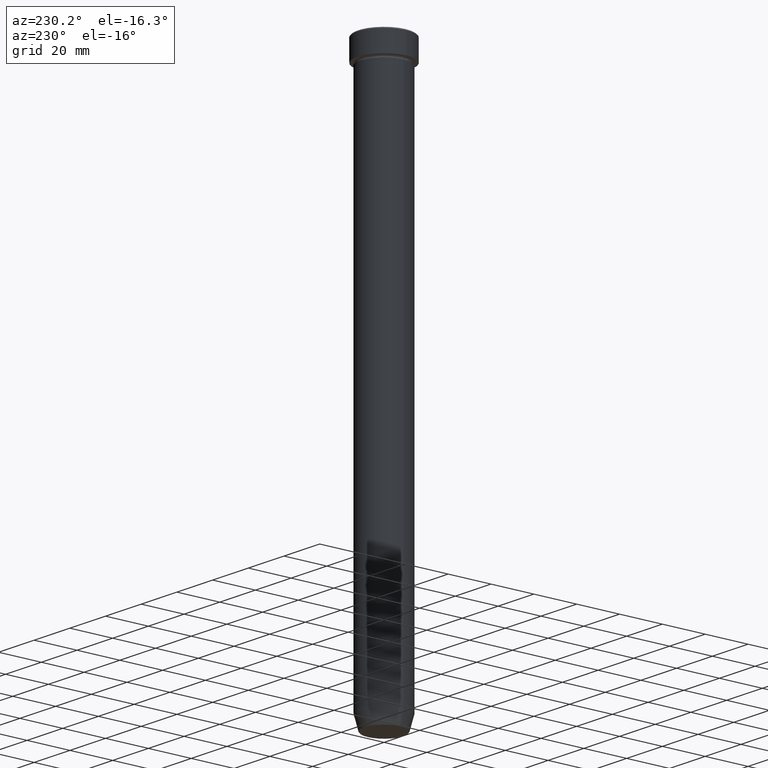
[diagram: clean part render]
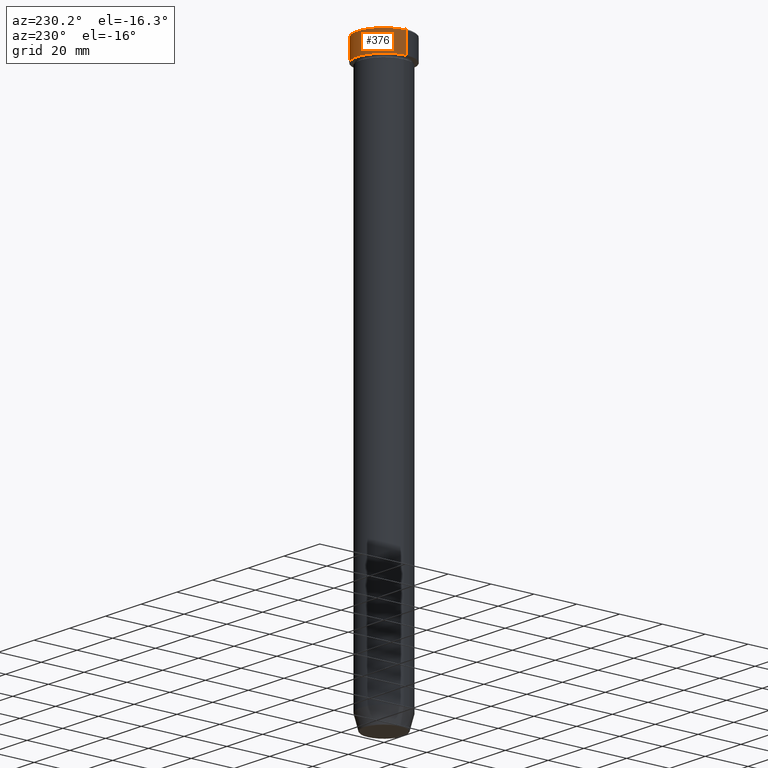
[diagram: same view with one face highlighted and labeled with its STEP entity id]
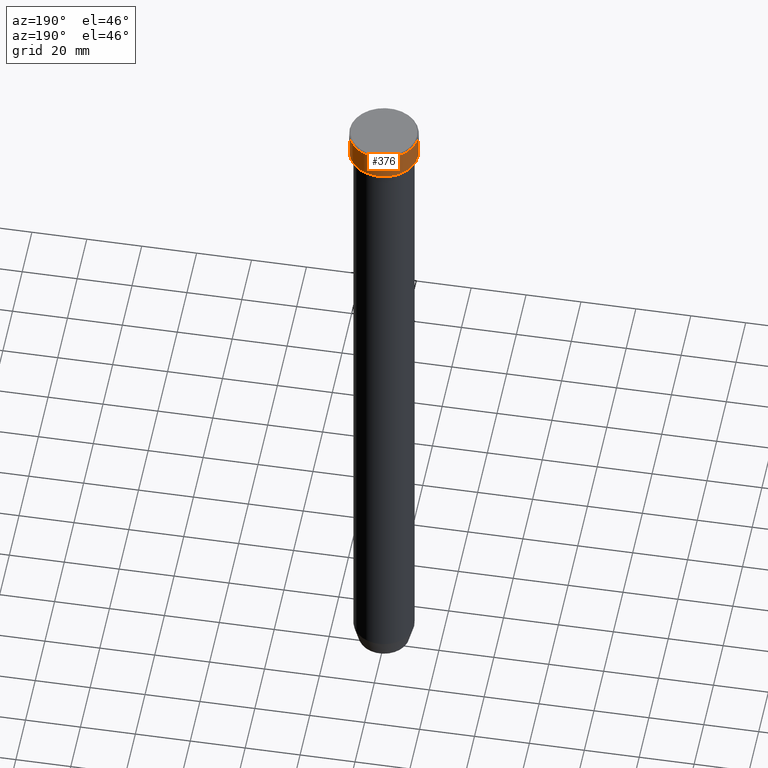
[diagram: same view with one face highlighted and labeled with its STEP entity id]
A machine part, auxiliary view. The second image highlights one B-rep face of the part: STEP entity #376.
A second angle (auxiliary view) of the same face is appended — the face is thin or edge-on in the first view.
In plain terms, the highlighted cylindrical surface (edge-blend (fillet) strip) has radius 12.5 mm, axis along (-0, -0, 1).
Its self-contained STEP definition (entity closure, byte-faithful):
#27 = CARTESIAN_POINT ( 'NONE',  ( -12.50000000000000000, 1.530808498934191521E-15, 0.000000000000000000 ) ) ;
#43 = DIRECTION ( 'NONE',  ( 0.000000000000000000, 0.000000000000000000, -1.000000000000000000 ) ) ;
#45 = CARTESIAN_POINT ( 'NONE',  ( 0.000000000000000000, 0.000000000000000000, -0.4999999999999988343 ) ) ;
#52 = EDGE_CURVE ( 'NONE', #199, #536, #200, .T. ) ;
#71 = CIRCLE ( 'NONE', #273, 12.50000000000000000 ) ;
#76 = ORIENTED_EDGE ( 'NONE', *, *, #313, .T. ) ;
#93 = ORIENTED_EDGE ( 'NONE', *, *, #52, .T. ) ;
#99 = DIRECTION ( 'NONE',  ( 1.000000000000000000, 0.000000000000000000, 0.000000000000000000 ) ) ;
#145 = CARTESIAN_POINT ( 'NONE',  ( -12.50000000000000000, 1.530808498934191521E-15, -0.4999999999999988343 ) ) ;
#152 = DIRECTION ( 'NONE',  ( -0.000000000000000000, -0.000000000000000000, 1.000000000000000000 ) ) ;
#167 = ORIENTED_EDGE ( 'NONE', *, *, #440, .F. ) ;
#172 = AXIS2_PLACEMENT_3D ( 'NONE', #391, #152, #519 ) ;
#192 = FACE_OUTER_BOUND ( 'NONE', #363, .T. ) ;
#196 = ORIENTED_EDGE ( 'NONE', *, *, #292, .T. ) ;
#199 = VERTEX_POINT ( 'NONE', #401 ) ;
#200 = LINE ( 'NONE', #27, #281 ) ;
#230 = CARTESIAN_POINT ( 'NONE',  ( 12.50000000000000000, 0.000000000000000000, -10.00000000000000000 ) ) ;
#239 = DIRECTION ( 'NONE',  ( 1.000000000000000000, 0.000000000000000000, 0.000000000000000000 ) ) ;
#244 = CIRCLE ( 'NONE', #293, 12.50000000000000000 ) ;
#273 = AXIS2_PLACEMENT_3D ( 'NONE', #45, #43, #239 ) ;
#281 = VECTOR ( 'NONE', #425, 1000.000000000000000 ) ;
#292 = EDGE_CURVE ( 'NONE', #536, #545, #71, .T. ) ;
#293 = AXIS2_PLACEMENT_3D ( 'NONE', #325, #508, #99 ) ;
#313 = EDGE_CURVE ( 'NONE', #350, #199, #244, .T. ) ;
#317 = CARTESIAN_POINT ( 'NONE',  ( 12.50000000000000000, 0.000000000000000000, -0.4999999999999988343 ) ) ;
#325 = CARTESIAN_POINT ( 'NONE',  ( 0.000000000000000000, 0.000000000000000000, -10.00000000000000000 ) ) ;
#347 = LINE ( 'NONE', #432, #577 ) ;
#350 = VERTEX_POINT ( 'NONE', #230 ) ;
#363 = EDGE_LOOP ( 'NONE', ( #76, #93, #196, #167 ) ) ;
#376 = ADVANCED_FACE ( 'NONE', ( #192 ), #570, .T. ) ;
#391 = CARTESIAN_POINT ( 'NONE',  ( 0.000000000000000000, 0.000000000000000000, 0.000000000000000000 ) ) ;
#401 = CARTESIAN_POINT ( 'NONE',  ( -12.50000000000000000, 1.530808498934191521E-15, -10.00000000000000000 ) ) ;
#425 = DIRECTION ( 'NONE',  ( -0.000000000000000000, -0.000000000000000000, 1.000000000000000000 ) ) ;
#432 = CARTESIAN_POINT ( 'NONE',  ( 12.50000000000000000, 0.000000000000000000, 0.000000000000000000 ) ) ;
#440 = EDGE_CURVE ( 'NONE', #350, #545, #347, .T. ) ;
#508 = DIRECTION ( 'NONE',  ( -0.000000000000000000, -0.000000000000000000, 1.000000000000000000 ) ) ;
#519 = DIRECTION ( 'NONE',  ( 1.000000000000000000, 0.000000000000000000, 0.000000000000000000 ) ) ;
#536 = VERTEX_POINT ( 'NONE', #145 ) ;
#538 = DIRECTION ( 'NONE',  ( -0.000000000000000000, -0.000000000000000000, 1.000000000000000000 ) ) ;
#545 = VERTEX_POINT ( 'NONE', #317 ) ;
#570 = CYLINDRICAL_SURFACE ( 'NONE', #172, 12.50000000000000000 ) ;
#577 = VECTOR ( 'NONE', #538, 1000.000000000000000 ) ;